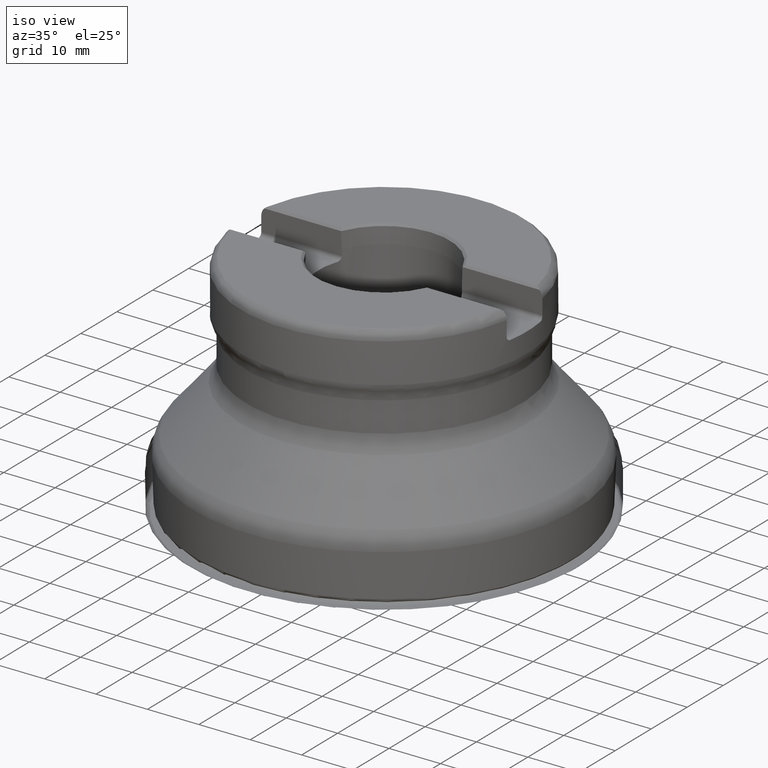
[diagram: clean part render]
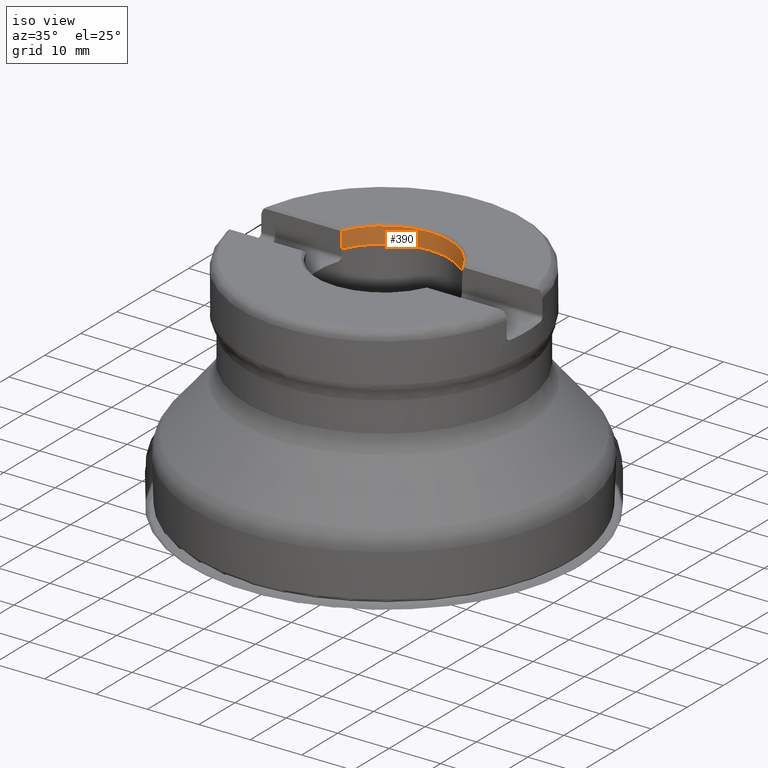
[diagram: same view with one face highlighted and labeled with its STEP entity id]
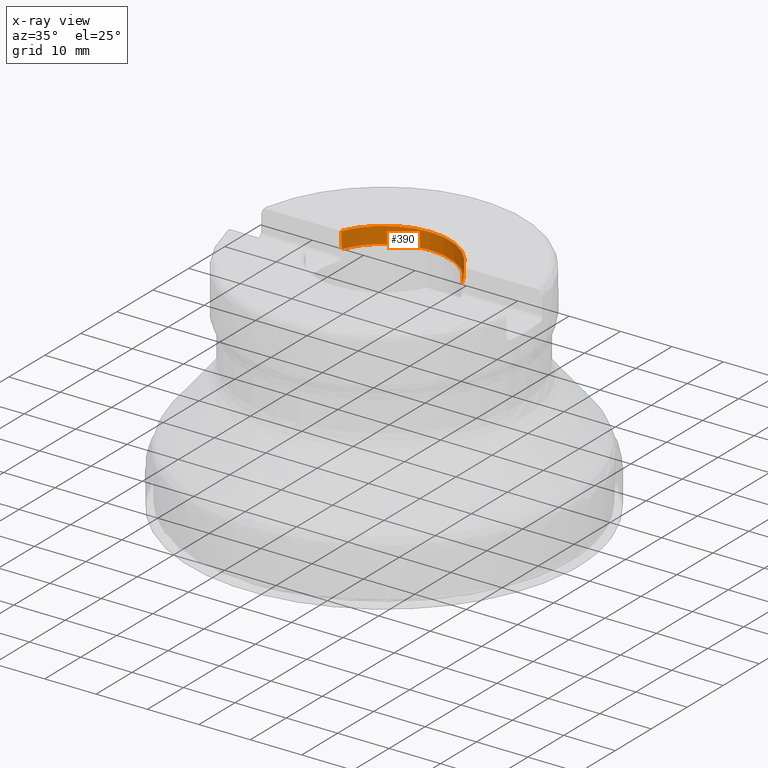
[diagram: x-ray of the same camera — body ghosted, the highlighted face saturated]
A machine part, iso view. The second image highlights one B-rep face of the part: STEP entity #390.
The next image is the same camera in x-ray: the body ghosted, the highlighted face saturated — about 0% of this face is hidden behind the body in this view.
In plain terms, the highlighted conical surface has half-angle 2 deg.
Its self-contained STEP definition (entity closure, byte-faithful):
#281=CONICAL_SURFACE('',#1261,12.7,2.);
#303=ELLIPSE('',#1201,17.8902248390979,12.6425836798474);
#304=ELLIPSE('',#1206,17.8902248390979,12.6425836798474);
#390=ADVANCED_FACE('',(#470),#281,.F.);
#470=FACE_OUTER_BOUND('',#514,.T.);
#514=EDGE_LOOP('',(#803,#804,#805,#806,#807,#808));
#609=CIRCLE('',#1204,12.808267149098);
#635=CIRCLE('',#1258,12.7);
#803=ORIENTED_EDGE('',*,*,#1024,.T.);
#804=ORIENTED_EDGE('',*,*,#1027,.T.);
#805=ORIENTED_EDGE('',*,*,#1080,.F.);
#806=ORIENTED_EDGE('',*,*,#1089,.T.);
#807=ORIENTED_EDGE('',*,*,#1082,.F.);
#808=ORIENTED_EDGE('',*,*,#1020,.T.);
#922=VERTEX_POINT('',#1939);
#923=VERTEX_POINT('',#1941);
#925=VERTEX_POINT('',#1950);
#926=VERTEX_POINT('',#1955);
#967=VERTEX_POINT('',#2208);
#968=VERTEX_POINT('',#2218);
#1020=EDGE_CURVE('',#923,#922,#303,.T.);
#1024=EDGE_CURVE('',#922,#925,#609,.T.);
#1027=EDGE_CURVE('',#925,#926,#304,.T.);
#1080=EDGE_CURVE('',#967,#926,#1169,.T.);
#1082=EDGE_CURVE('',#923,#968,#1170,.T.);
#1089=EDGE_CURVE('',#967,#968,#635,.T.);
#1169=B_SPLINE_CURVE_WITH_KNOTS('',3,(#2201,#2202,#2203,#2204,#2205,#2206,
#2207),.UNSPECIFIED.,.F.,.F.,(4,3,4),(0.,0.569752128564376,1.),
 .UNSPECIFIED.);
#1170=B_SPLINE_CURVE_WITH_KNOTS('',3,(#2211,#2212,#2213,#2214,#2215,#2216,
#2217),.UNSPECIFIED.,.F.,.F.,(4,3,4),(0.,0.430247871435624,1.),
 .UNSPECIFIED.);
#1201=AXIS2_PLACEMENT_3D('',#1940,#1333,#1334);
#1204=AXIS2_PLACEMENT_3D('',#1951,#1340,#1341);
#1206=AXIS2_PLACEMENT_3D('',#1956,#1346,#1347);
#1258=AXIS2_PLACEMENT_3D('',#2243,#1470,#1471);
#1261=AXIS2_PLACEMENT_3D('',#2246,#1476,#1477);
#1333=DIRECTION('',(0.,-0.707106781186549,0.707106781186546));
#1334=DIRECTION('',(0.,0.707106781186546,0.707106781186549));
#1340=DIRECTION('',(0.,1.17145536458252E-15,1.));
#1341=DIRECTION('',(0.,-1.,1.08350236970126E-15));
#1346=DIRECTION('',(0.,-0.707106781186549,0.707106781186546));
#1347=DIRECTION('',(0.,0.707106781186546,0.707106781186549));
#1470=DIRECTION('',(0.,-1.17145536458252E-15,-1.));
#1471=DIRECTION('',(0.,-1.,1.09273919746571E-15));
#1476=DIRECTION('',(0.,1.17145536458252E-15,1.));
#1477=DIRECTION('',(0.,-1.,1.01998052206544E-15));
#1939=CARTESIAN_POINT('',(11.8066444333879,4.96536550378859,44.0503655037885));
#1940=CARTESIAN_POINT('',(0.,0.441758185880646,39.5267581858806));
#1941=CARTESIAN_POINT('',(11.8067842955541,4.96500000000005,44.05));
#1950=CARTESIAN_POINT('',(-11.8066444333879,4.96536550378859,44.0503655037885));
#1951=CARTESIAN_POINT('',(0.,5.1603036981234E-14,44.0503655037885));
#1955=CARTESIAN_POINT('',(-11.8067842955541,4.96500000000005,44.05));
#1956=CARTESIAN_POINT('',(0.,0.441758185880646,39.5267581858806));
#2201=CARTESIAN_POINT('',(-11.6892589585482,4.96500000000005,40.95));
#2202=CARTESIAN_POINT('',(-11.7115960419743,4.96500000000005,41.5387432219118));
#2203=CARTESIAN_POINT('',(-11.7339233541799,4.96500000000005,42.1274868146249));
#2204=CARTESIAN_POINT('',(-11.7562410611818,4.96500000000005,42.7162307713644));
#2205=CARTESIAN_POINT('',(-11.7730942600819,4.96500000000005,43.1608203075257));
#2206=CARTESIAN_POINT('',(-11.789941981532,4.96500000000005,43.6054100513555));
#2207=CARTESIAN_POINT('',(-11.8067842955541,4.96500000000005,44.05));
#2208=CARTESIAN_POINT('',(-11.6892589585482,4.96500000000005,40.95));
#2211=CARTESIAN_POINT('',(11.8067842955541,4.96500000000005,44.05));
#2212=CARTESIAN_POINT('',(11.789941981532,4.96500000000005,43.6054100513555));
#2213=CARTESIAN_POINT('',(11.7730942600819,4.96500000000005,43.1608203075257));
#2214=CARTESIAN_POINT('',(11.7562410611818,4.96500000000005,42.7162307713644));
#2215=CARTESIAN_POINT('',(11.7339233541799,4.96500000000005,42.1274868146249));
#2216=CARTESIAN_POINT('',(11.7115960419743,4.96500000000005,41.5387432219118));
#2217=CARTESIAN_POINT('',(11.6892589585482,4.96500000000005,40.95));
#2218=CARTESIAN_POINT('',(11.6892589585482,4.96500000000005,40.95));
#2243=CARTESIAN_POINT('',(0.,4.79710971796544E-14,40.95));
#2246=CARTESIAN_POINT('',(0.,4.79710971796544E-14,40.95));